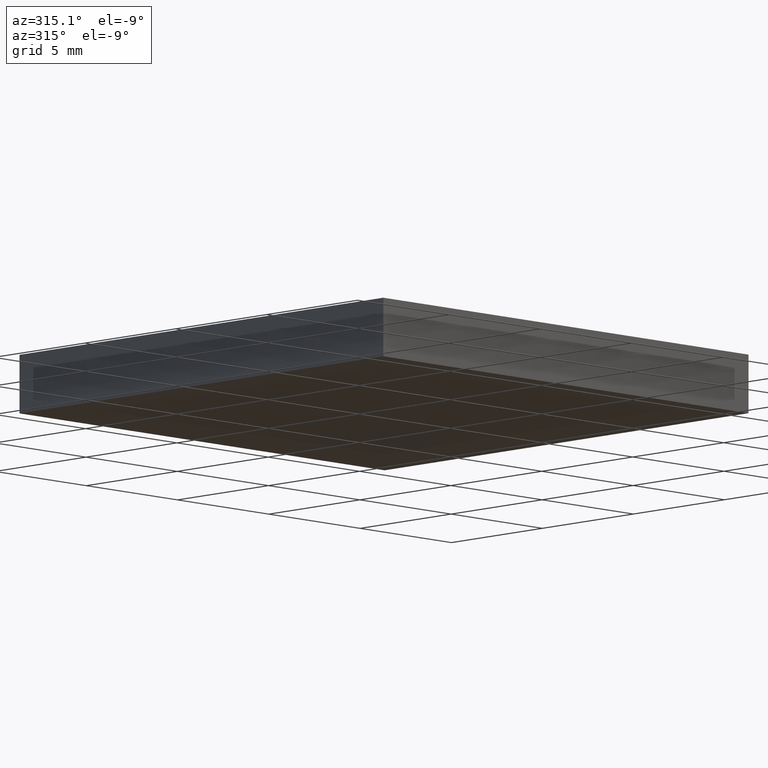
[diagram: clean part render]
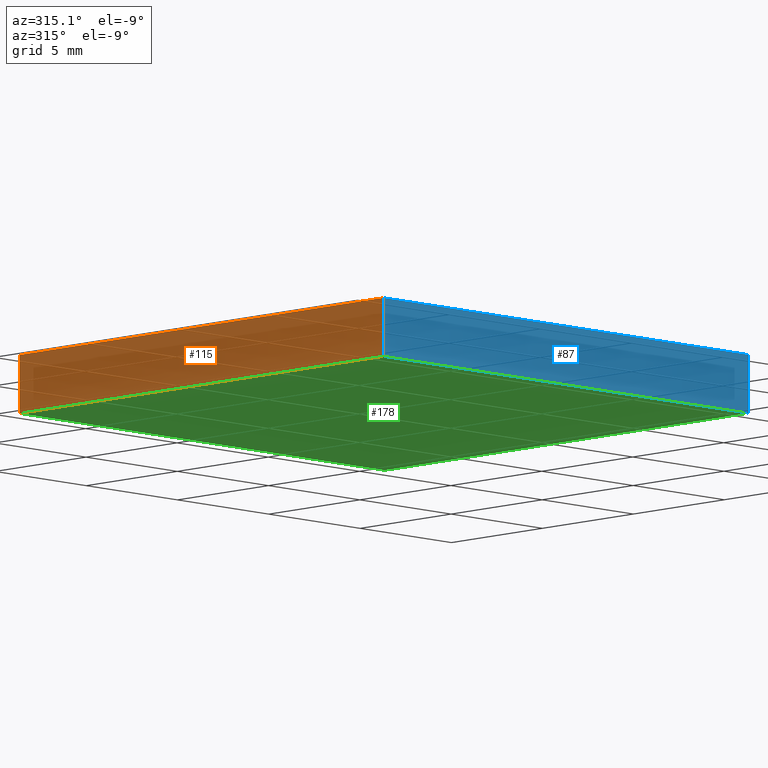
[diagram: same view with three faces highlighted in distinct colors, each labeled with its STEP entity id]
A machine part, auxiliary view with three faces highlighted in distinct colors.
Their STEP definitions:

[orange] entity #115 — the highlighted planar face has unit normal (1, 0, -0).
#11 = EDGE_CURVE ( 'NONE', #69, #56, #146, .T. ) ;
#12 = ORIENTED_EDGE ( 'NONE', *, *, #182, .T. ) ;
#18 = PLANE ( 'NONE',  #110 ) ;
#27 = EDGE_LOOP ( 'NONE', ( #12, #129, #103, #53 ) ) ;
#31 = VECTOR ( 'NONE', #96, 1000.000000000000000 ) ;
#32 = CARTESIAN_POINT ( 'NONE',  ( 62.40998929485574100, 31.04216122301770000, 0.0000000000000000000 ) ) ;
#35 = CARTESIAN_POINT ( 'NONE',  ( 62.40998929485574100, 31.04216122301770000, 2.299999999999999800 ) ) ;
#41 = CARTESIAN_POINT ( 'NONE',  ( 62.40998929485572700, 51.04216122301768600, 0.0000000000000000000 ) ) ;
#42 = CARTESIAN_POINT ( 'NONE',  ( 62.40998929485572700, 51.04216122301768600, 2.299999999999999800 ) ) ;
#44 = DIRECTION ( 'NONE',  ( -0.0000000000000000000, -0.0000000000000000000, -1.000000000000000000 ) ) ;
#53 = ORIENTED_EDGE ( 'NONE', *, *, #88, .T. ) ;
#56 = VERTEX_POINT ( 'NONE', #105 ) ;
#59 = FACE_OUTER_BOUND ( 'NONE', #27, .T. ) ;
#66 = DIRECTION ( 'NONE',  ( -0.0000000000000000000, -0.0000000000000000000, -1.000000000000000000 ) ) ;
#69 = VERTEX_POINT ( 'NONE', #184 ) ;
#76 = CARTESIAN_POINT ( 'NONE',  ( 62.40998929485572700, 51.04216122301768600, 2.299999999999999800 ) ) ;
#77 = LINE ( 'NONE', #35, #161 ) ;
#88 = EDGE_CURVE ( 'NONE', #69, #158, #200, .T. ) ;
#90 = VECTOR ( 'NONE', #145, 1000.000000000000000 ) ;
#96 = DIRECTION ( 'NONE',  ( 6.938893903907234300E-016, -1.000000000000000000, 0.0000000000000000000 ) ) ;
#98 = LINE ( 'NONE', #41, #31 ) ;
#103 = ORIENTED_EDGE ( 'NONE', *, *, #11, .F. ) ;
#105 = CARTESIAN_POINT ( 'NONE',  ( 62.40998929485574100, 31.04216122301770000, 2.299999999999999800 ) ) ;
#110 = AXIS2_PLACEMENT_3D ( 'NONE', #76, #124, #168 ) ;
#115 = ADVANCED_FACE ( 'NONE', ( #59 ), #18, .F. ) ;
#124 = DIRECTION ( 'NONE',  ( 1.000000000000000000, 6.938893903907234300E-016, -0.0000000000000000000 ) ) ;
#129 = ORIENTED_EDGE ( 'NONE', *, *, #194, .F. ) ;
#133 = CARTESIAN_POINT ( 'NONE',  ( 62.40998929485572700, 51.04216122301768600, 2.299999999999999800 ) ) ;
#142 = VERTEX_POINT ( 'NONE', #32 ) ;
#145 = DIRECTION ( 'NONE',  ( 6.938893903907234300E-016, -1.000000000000000000, 0.0000000000000000000 ) ) ;
#146 = LINE ( 'NONE', #133, #90 ) ;
#158 = VERTEX_POINT ( 'NONE', #199 ) ;
#161 = VECTOR ( 'NONE', #66, 1000.000000000000000 ) ;
#168 = DIRECTION ( 'NONE',  ( -6.938893903907234300E-016, 1.000000000000000000, 0.0000000000000000000 ) ) ;
#182 = EDGE_CURVE ( 'NONE', #158, #142, #98, .T. ) ;
#184 = CARTESIAN_POINT ( 'NONE',  ( 62.40998929485572700, 51.04216122301768600, 2.299999999999999800 ) ) ;
#189 = VECTOR ( 'NONE', #44, 1000.000000000000000 ) ;
#194 = EDGE_CURVE ( 'NONE', #56, #142, #77, .T. ) ;
#199 = CARTESIAN_POINT ( 'NONE',  ( 62.40998929485572700, 51.04216122301768600, 0.0000000000000000000 ) ) ;
#200 = LINE ( 'NONE', #42, #189 ) ;

[blue] entity #87 — the highlighted planar face has unit normal (0, 1, 0).
#1 = EDGE_LOOP ( 'NONE', ( #185, #6, #113, #73 ) ) ;
#5 = EDGE_CURVE ( 'NONE', #150, #104, #40, .T. ) ;
#6 = ORIENTED_EDGE ( 'NONE', *, *, #5, .F. ) ;
#13 = CARTESIAN_POINT ( 'NONE',  ( 82.40998929485572000, 31.04216122301770000, 0.0000000000000000000 ) ) ;
#16 = DIRECTION ( 'NONE',  ( 1.000000000000000000, 0.0000000000000000000, 0.0000000000000000000 ) ) ;
#19 = VECTOR ( 'NONE', #16, 1000.000000000000000 ) ;
#32 = CARTESIAN_POINT ( 'NONE',  ( 62.40998929485574100, 31.04216122301770000, 0.0000000000000000000 ) ) ;
#35 = CARTESIAN_POINT ( 'NONE',  ( 62.40998929485574100, 31.04216122301770000, 2.299999999999999800 ) ) ;
#37 = AXIS2_PLACEMENT_3D ( 'NONE', #152, #136, #122 ) ;
#40 = LINE ( 'NONE', #93, #197 ) ;
#56 = VERTEX_POINT ( 'NONE', #105 ) ;
#66 = DIRECTION ( 'NONE',  ( -0.0000000000000000000, -0.0000000000000000000, -1.000000000000000000 ) ) ;
#67 = VECTOR ( 'NONE', #153, 1000.000000000000000 ) ;
#73 = ORIENTED_EDGE ( 'NONE', *, *, #194, .T. ) ;
#77 = LINE ( 'NONE', #35, #161 ) ;
#80 = EDGE_CURVE ( 'NONE', #142, #104, #159, .T. ) ;
#87 = ADVANCED_FACE ( 'NONE', ( #119 ), #137, .F. ) ;
#93 = CARTESIAN_POINT ( 'NONE',  ( 82.40998929485572000, 31.04216122301770000, 2.299999999999999800 ) ) ;
#104 = VERTEX_POINT ( 'NONE', #13 ) ;
#105 = CARTESIAN_POINT ( 'NONE',  ( 62.40998929485574100, 31.04216122301770000, 2.299999999999999800 ) ) ;
#113 = ORIENTED_EDGE ( 'NONE', *, *, #173, .F. ) ;
#119 = FACE_OUTER_BOUND ( 'NONE', #1, .T. ) ;
#122 = DIRECTION ( 'NONE',  ( 0.0000000000000000000, -0.0000000000000000000, 1.000000000000000000 ) ) ;
#136 = DIRECTION ( 'NONE',  ( 0.0000000000000000000, 1.000000000000000000, 0.0000000000000000000 ) ) ;
#137 = PLANE ( 'NONE',  #37 ) ;
#142 = VERTEX_POINT ( 'NONE', #32 ) ;
#150 = VERTEX_POINT ( 'NONE', #167 ) ;
#152 = CARTESIAN_POINT ( 'NONE',  ( 62.40998929485574100, 31.04216122301770000, 2.299999999999999800 ) ) ;
#153 = DIRECTION ( 'NONE',  ( 1.000000000000000000, 0.0000000000000000000, 0.0000000000000000000 ) ) ;
#157 = LINE ( 'NONE', #181, #67 ) ;
#159 = LINE ( 'NONE', #165, #19 ) ;
#161 = VECTOR ( 'NONE', #66, 1000.000000000000000 ) ;
#165 = CARTESIAN_POINT ( 'NONE',  ( 62.40998929485574100, 31.04216122301770000, 0.0000000000000000000 ) ) ;
#167 = CARTESIAN_POINT ( 'NONE',  ( 82.40998929485572000, 31.04216122301770000, 2.299999999999999800 ) ) ;
#173 = EDGE_CURVE ( 'NONE', #56, #150, #157, .T. ) ;
#181 = CARTESIAN_POINT ( 'NONE',  ( 62.40998929485574100, 31.04216122301770000, 2.299999999999999800 ) ) ;
#185 = ORIENTED_EDGE ( 'NONE', *, *, #80, .T. ) ;
#194 = EDGE_CURVE ( 'NONE', #56, #142, #77, .T. ) ;
#195 = DIRECTION ( 'NONE',  ( -0.0000000000000000000, -0.0000000000000000000, -1.000000000000000000 ) ) ;
#197 = VECTOR ( 'NONE', #195, 1000.000000000000000 ) ;

[green] entity #178 — the highlighted planar face has unit normal (-0, 0, 1).
#13 = CARTESIAN_POINT ( 'NONE',  ( 82.40998929485572000, 31.04216122301770000, 0.0000000000000000000 ) ) ;
#16 = DIRECTION ( 'NONE',  ( 1.000000000000000000, 0.0000000000000000000, 0.0000000000000000000 ) ) ;
#19 = VECTOR ( 'NONE', #16, 1000.000000000000000 ) ;
#25 = EDGE_CURVE ( 'NONE', #163, #158, #131, .T. ) ;
#30 = DIRECTION ( 'NONE',  ( 1.000000000000000000, 0.0000000000000000000, 0.0000000000000000000 ) ) ;
#31 = VECTOR ( 'NONE', #96, 1000.000000000000000 ) ;
#32 = CARTESIAN_POINT ( 'NONE',  ( 62.40998929485574100, 31.04216122301770000, 0.0000000000000000000 ) ) ;
#36 = ORIENTED_EDGE ( 'NONE', *, *, #25, .F. ) ;
#38 = VECTOR ( 'NONE', #57, 1000.000000000000000 ) ;
#41 = CARTESIAN_POINT ( 'NONE',  ( 62.40998929485572700, 51.04216122301768600, 0.0000000000000000000 ) ) ;
#47 = VECTOR ( 'NONE', #166, 1000.000000000000000 ) ;
#51 = EDGE_CURVE ( 'NONE', #104, #163, #52, .T. ) ;
#52 = LINE ( 'NONE', #94, #47 ) ;
#57 = DIRECTION ( 'NONE',  ( -1.000000000000000000, -3.469446951953617100E-016, -0.0000000000000000000 ) ) ;
#75 = CARTESIAN_POINT ( 'NONE',  ( 82.40998929485570600, 51.04216122301769300, 0.0000000000000000000 ) ) ;
#80 = EDGE_CURVE ( 'NONE', #142, #104, #159, .T. ) ;
#92 = EDGE_LOOP ( 'NONE', ( #175, #36, #109, #155 ) ) ;
#94 = CARTESIAN_POINT ( 'NONE',  ( 82.40998929485570600, 51.04216122301769300, 0.0000000000000000000 ) ) ;
#96 = DIRECTION ( 'NONE',  ( 6.938893903907234300E-016, -1.000000000000000000, 0.0000000000000000000 ) ) ;
#98 = LINE ( 'NONE', #41, #31 ) ;
#104 = VERTEX_POINT ( 'NONE', #13 ) ;
#109 = ORIENTED_EDGE ( 'NONE', *, *, #51, .F. ) ;
#111 = AXIS2_PLACEMENT_3D ( 'NONE', #149, #201, #30 ) ;
#125 = PLANE ( 'NONE',  #111 ) ;
#131 = LINE ( 'NONE', #179, #38 ) ;
#142 = VERTEX_POINT ( 'NONE', #32 ) ;
#149 = CARTESIAN_POINT ( 'NONE',  ( 0.0000000000000000000, 0.0000000000000000000, 0.0000000000000000000 ) ) ;
#154 = FACE_OUTER_BOUND ( 'NONE', #92, .T. ) ;
#155 = ORIENTED_EDGE ( 'NONE', *, *, #80, .F. ) ;
#158 = VERTEX_POINT ( 'NONE', #199 ) ;
#159 = LINE ( 'NONE', #165, #19 ) ;
#163 = VERTEX_POINT ( 'NONE', #75 ) ;
#165 = CARTESIAN_POINT ( 'NONE',  ( 62.40998929485574100, 31.04216122301770000, 0.0000000000000000000 ) ) ;
#166 = DIRECTION ( 'NONE',  ( -6.938893903907232300E-016, 1.000000000000000000, -0.0000000000000000000 ) ) ;
#175 = ORIENTED_EDGE ( 'NONE', *, *, #182, .F. ) ;
#178 = ADVANCED_FACE ( 'NONE', ( #154 ), #125, .F. ) ;
#179 = CARTESIAN_POINT ( 'NONE',  ( 62.40998929485572700, 51.04216122301768600, 0.0000000000000000000 ) ) ;
#182 = EDGE_CURVE ( 'NONE', #158, #142, #98, .T. ) ;
#199 = CARTESIAN_POINT ( 'NONE',  ( 62.40998929485572700, 51.04216122301768600, 0.0000000000000000000 ) ) ;
#201 = DIRECTION ( 'NONE',  ( -0.0000000000000000000, 0.0000000000000000000, 1.000000000000000000 ) ) ;